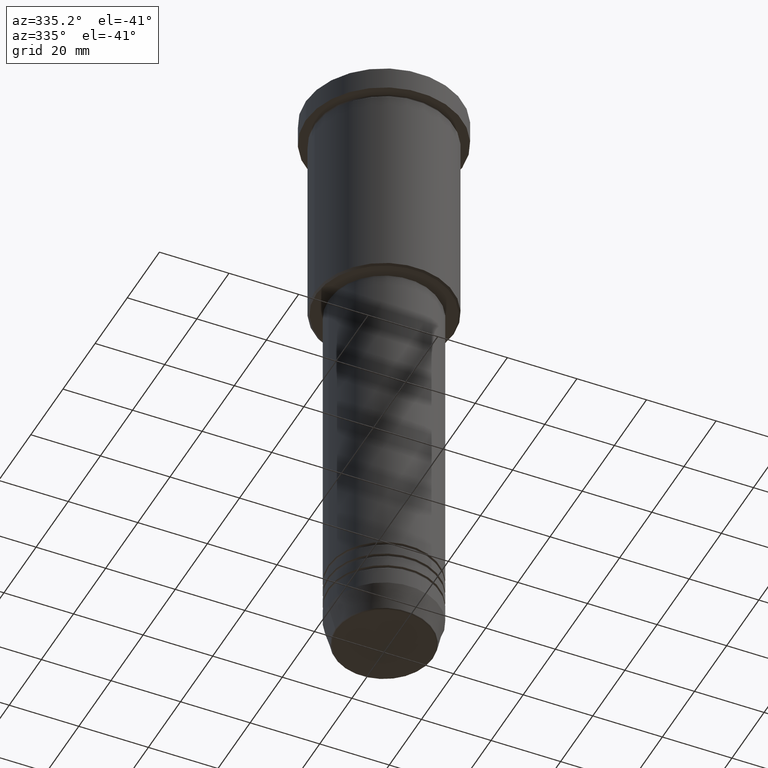
[diagram: clean part render]
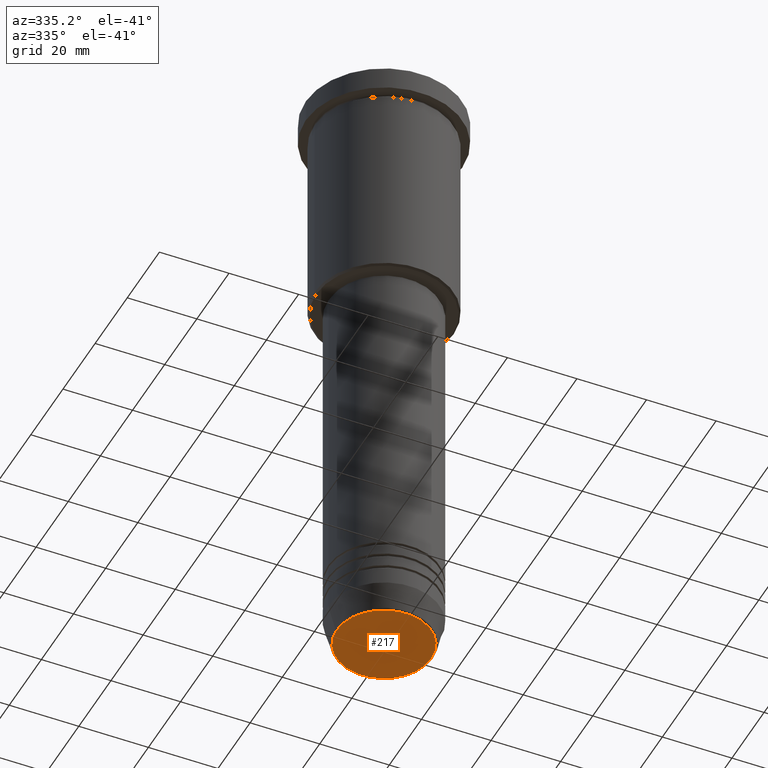
[diagram: same view with one face highlighted and labeled with its STEP entity id]
A machine part, auxiliary view. The second image highlights one B-rep face of the part: STEP entity #217.
In plain terms, the highlighted planar face has unit normal (0, -0, 1).
Its self-contained STEP definition (entity closure, byte-faithful):
#10 = AXIS2_PLACEMENT_3D ( 'NONE', #445, #629, #1075 ) ;
#55 = CARTESIAN_POINT ( 'NONE',  ( 0.000000000000000000, 0.000000000000000000, -180.0000000000000000 ) ) ;
#64 = CIRCLE ( 'NONE', #1032, 13.60671756277710109 ) ;
#77 = ORIENTED_EDGE ( 'NONE', *, *, #733, .T. ) ;
#127 = FACE_OUTER_BOUND ( 'NONE', #492, .T. ) ;
#139 = PLANE ( 'NONE',  #656 ) ;
#217 = ADVANCED_FACE ( 'NONE', ( #127 ), #139, .F. ) ;
#445 = CARTESIAN_POINT ( 'NONE',  ( 0.000000000000000000, 0.000000000000000000, -180.0000000000000000 ) ) ;
#492 = EDGE_LOOP ( 'NONE', ( #1120, #77 ) ) ;
#519 = DIRECTION ( 'NONE',  ( 0.000000000000000000, 0.000000000000000000, -1.000000000000000000 ) ) ;
#552 = VERTEX_POINT ( 'NONE', #657 ) ;
#584 = DIRECTION ( 'NONE',  ( 1.000000000000000000, 0.000000000000000000, 0.000000000000000000 ) ) ;
#629 = DIRECTION ( 'NONE',  ( 0.000000000000000000, 0.000000000000000000, -1.000000000000000000 ) ) ;
#656 = AXIS2_PLACEMENT_3D ( 'NONE', #705, #1152, #1064 ) ;
#657 = CARTESIAN_POINT ( 'NONE',  ( 13.60671756277710109, 0.000000000000000000, -180.0000000000000000 ) ) ;
#705 = CARTESIAN_POINT ( 'NONE',  ( 0.000000000000000000, 0.000000000000000000, -180.0000000000000000 ) ) ;
#733 = EDGE_CURVE ( 'NONE', #983, #552, #64, .T. ) ;
#832 = CIRCLE ( 'NONE', #10, 13.60671756277710109 ) ;
#881 = CARTESIAN_POINT ( 'NONE',  ( -13.60671756277710109, 1.695915260300172047E-15, -180.0000000000000000 ) ) ;
#983 = VERTEX_POINT ( 'NONE', #881 ) ;
#1027 = EDGE_CURVE ( 'NONE', #552, #983, #832, .T. ) ;
#1032 = AXIS2_PLACEMENT_3D ( 'NONE', #55, #519, #584 ) ;
#1064 = DIRECTION ( 'NONE',  ( 1.000000000000000000, 0.000000000000000000, 0.000000000000000000 ) ) ;
#1075 = DIRECTION ( 'NONE',  ( 1.000000000000000000, 0.000000000000000000, 0.000000000000000000 ) ) ;
#1120 = ORIENTED_EDGE ( 'NONE', *, *, #1027, .T. ) ;
#1152 = DIRECTION ( 'NONE',  ( 0.000000000000000000, -0.000000000000000000, 1.000000000000000000 ) ) ;